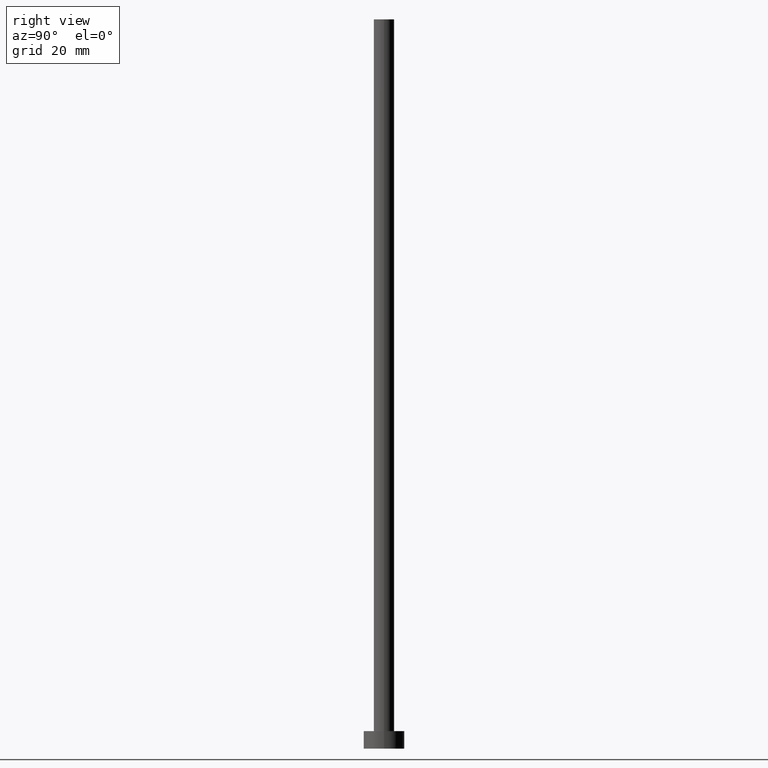
[diagram: clean part render]
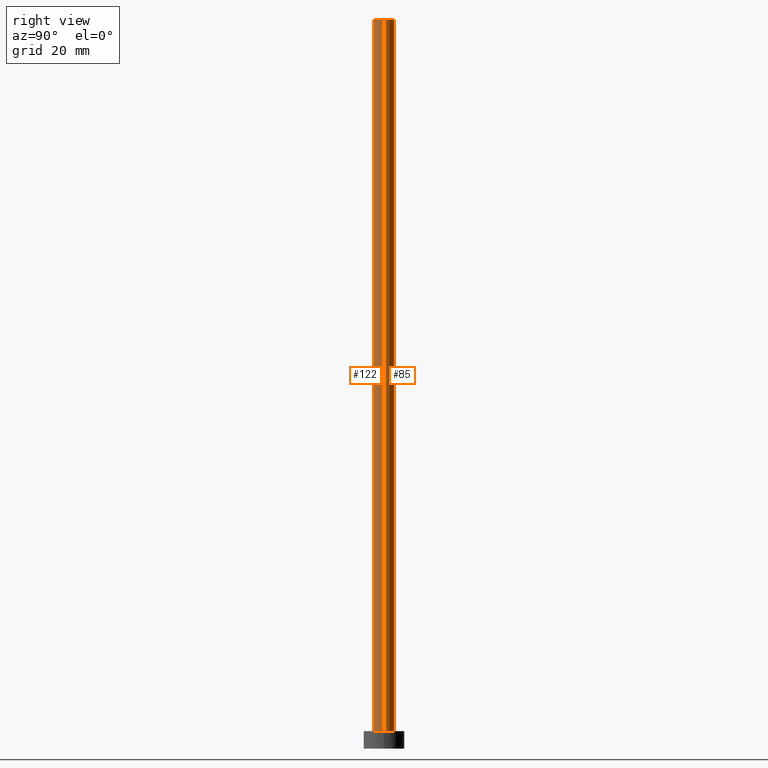
[diagram: same view with one multi-face feature highlighted, each face labeled with its STEP entity id]
A machine part, right view. The highlighted faces form ONE feature: a constant-radius fillet chain: 2 tangent blend faces with common blend radius 1.75 mm. The faces share edges in the B-rep.
Their STEP definitions:
[1] entity #85 (Cylinder):
#16 = VERTEX_POINT ( 'NONE', #32 ) ;
#17 = EDGE_CURVE ( 'NONE', #16, #148, #189, .T. ) ;
#20 = ORIENTED_EDGE ( 'NONE', *, *, #95, .F. ) ;
#23 = DIRECTION ( 'NONE',  ( -1.000000000000000000, 0.000000000000000000, 0.000000000000000000 ) ) ;
#32 = CARTESIAN_POINT ( 'NONE',  ( 1.750000000000000000, 2.143131898507867804E-16, 3.000000000000000000 ) ) ;
#38 = EDGE_CURVE ( 'NONE', #84, #16, #245, .T. ) ;
#41 = CARTESIAN_POINT ( 'NONE',  ( -1.750000000000000000, 0.000000000000000000, 125.0000000000000000 ) ) ;
#56 = AXIS2_PLACEMENT_3D ( 'NONE', #200, #114, #23 ) ;
#57 = DIRECTION ( 'NONE',  ( 1.000000000000000000, 0.000000000000000000, 0.000000000000000000 ) ) ;
#60 = ORIENTED_EDGE ( 'NONE', *, *, #110, .F. ) ;
#67 = CARTESIAN_POINT ( 'NONE',  ( 1.750000000000000000, 2.143131898507867804E-16, 125.0000000000000000 ) ) ;
#70 = DIRECTION ( 'NONE',  ( -0.000000000000000000, -0.000000000000000000, -1.000000000000000000 ) ) ;
#75 = DIRECTION ( 'NONE',  ( 0.000000000000000000, 0.000000000000000000, 1.000000000000000000 ) ) ;
#84 = VERTEX_POINT ( 'NONE', #67 ) ;
#85 = ADVANCED_FACE ( 'NONE', ( #144 ), #147, .T. ) ;
#89 = VECTOR ( 'NONE', #70, 1000.000000000000000 ) ;
#95 = EDGE_CURVE ( 'NONE', #221, #148, #201, .T. ) ;
#99 = VECTOR ( 'NONE', #154, 1000.000000000000000 ) ;
#110 = EDGE_CURVE ( 'NONE', #84, #221, #235, .T. ) ;
#114 = DIRECTION ( 'NONE',  ( -0.000000000000000000, -0.000000000000000000, -1.000000000000000000 ) ) ;
#116 = CARTESIAN_POINT ( 'NONE',  ( -1.750000000000000000, 0.000000000000000000, 3.000000000000000000 ) ) ;
#128 = AXIS2_PLACEMENT_3D ( 'NONE', #246, #75, #228 ) ;
#144 = FACE_OUTER_BOUND ( 'NONE', #206, .T. ) ;
#147 = CYLINDRICAL_SURFACE ( 'NONE', #56, 1.750000000000000000 ) ;
#148 = VERTEX_POINT ( 'NONE', #116 ) ;
#154 = DIRECTION ( 'NONE',  ( -0.000000000000000000, -0.000000000000000000, -1.000000000000000000 ) ) ;
#163 = ORIENTED_EDGE ( 'NONE', *, *, #38, .T. ) ;
#171 = CARTESIAN_POINT ( 'NONE',  ( 0.000000000000000000, 0.000000000000000000, 3.000000000000000000 ) ) ;
#189 = CIRCLE ( 'NONE', #204, 1.750000000000000000 ) ;
#190 = DIRECTION ( 'NONE',  ( 0.000000000000000000, 0.000000000000000000, 1.000000000000000000 ) ) ;
#191 = CARTESIAN_POINT ( 'NONE',  ( 1.750000000000000000, 2.143131898507867804E-16, 125.0000000000000000 ) ) ;
#200 = CARTESIAN_POINT ( 'NONE',  ( 0.000000000000000000, 0.000000000000000000, 125.0000000000000000 ) ) ;
#201 = LINE ( 'NONE', #242, #89 ) ;
#204 = AXIS2_PLACEMENT_3D ( 'NONE', #171, #190, #57 ) ;
#206 = EDGE_LOOP ( 'NONE', ( #60, #163, #215, #20 ) ) ;
#215 = ORIENTED_EDGE ( 'NONE', *, *, #17, .T. ) ;
#221 = VERTEX_POINT ( 'NONE', #41 ) ;
#228 = DIRECTION ( 'NONE',  ( 1.000000000000000000, 0.000000000000000000, 0.000000000000000000 ) ) ;
#235 = CIRCLE ( 'NONE', #128, 1.750000000000000000 ) ;
#242 = CARTESIAN_POINT ( 'NONE',  ( -1.750000000000000000, 0.000000000000000000, 125.0000000000000000 ) ) ;
#245 = LINE ( 'NONE', #191, #99 ) ;
#246 = CARTESIAN_POINT ( 'NONE',  ( 0.000000000000000000, 0.000000000000000000, 125.0000000000000000 ) ) ;
[2] entity #122 (Cylinder):
#16 = VERTEX_POINT ( 'NONE', #32 ) ;
#18 = EDGE_LOOP ( 'NONE', ( #106, #184, #219, #34 ) ) ;
#32 = CARTESIAN_POINT ( 'NONE',  ( 1.750000000000000000, 2.143131898507867804E-16, 3.000000000000000000 ) ) ;
#34 = ORIENTED_EDGE ( 'NONE', *, *, #229, .T. ) ;
#38 = EDGE_CURVE ( 'NONE', #84, #16, #245, .T. ) ;
#41 = CARTESIAN_POINT ( 'NONE',  ( -1.750000000000000000, 0.000000000000000000, 125.0000000000000000 ) ) ;
#51 = AXIS2_PLACEMENT_3D ( 'NONE', #69, #150, #82 ) ;
#53 = FACE_OUTER_BOUND ( 'NONE', #18, .T. ) ;
#67 = CARTESIAN_POINT ( 'NONE',  ( 1.750000000000000000, 2.143131898507867804E-16, 125.0000000000000000 ) ) ;
#69 = CARTESIAN_POINT ( 'NONE',  ( 0.000000000000000000, 0.000000000000000000, 3.000000000000000000 ) ) ;
#70 = DIRECTION ( 'NONE',  ( -0.000000000000000000, -0.000000000000000000, -1.000000000000000000 ) ) ;
#82 = DIRECTION ( 'NONE',  ( 1.000000000000000000, 0.000000000000000000, 0.000000000000000000 ) ) ;
#84 = VERTEX_POINT ( 'NONE', #67 ) ;
#89 = VECTOR ( 'NONE', #70, 1000.000000000000000 ) ;
#90 = EDGE_CURVE ( 'NONE', #221, #84, #241, .T. ) ;
#94 = CARTESIAN_POINT ( 'NONE',  ( 0.000000000000000000, 0.000000000000000000, 125.0000000000000000 ) ) ;
#95 = EDGE_CURVE ( 'NONE', #221, #148, #201, .T. ) ;
#99 = VECTOR ( 'NONE', #154, 1000.000000000000000 ) ;
#106 = ORIENTED_EDGE ( 'NONE', *, *, #38, .F. ) ;
#116 = CARTESIAN_POINT ( 'NONE',  ( -1.750000000000000000, 0.000000000000000000, 3.000000000000000000 ) ) ;
#122 = ADVANCED_FACE ( 'NONE', ( #53 ), #155, .T. ) ;
#132 = DIRECTION ( 'NONE',  ( 1.000000000000000000, 0.000000000000000000, 0.000000000000000000 ) ) ;
#137 = DIRECTION ( 'NONE',  ( -1.000000000000000000, 0.000000000000000000, 0.000000000000000000 ) ) ;
#148 = VERTEX_POINT ( 'NONE', #116 ) ;
#150 = DIRECTION ( 'NONE',  ( 0.000000000000000000, 0.000000000000000000, 1.000000000000000000 ) ) ;
#154 = DIRECTION ( 'NONE',  ( -0.000000000000000000, -0.000000000000000000, -1.000000000000000000 ) ) ;
#155 = CYLINDRICAL_SURFACE ( 'NONE', #225, 1.750000000000000000 ) ;
#184 = ORIENTED_EDGE ( 'NONE', *, *, #90, .F. ) ;
#191 = CARTESIAN_POINT ( 'NONE',  ( 1.750000000000000000, 2.143131898507867804E-16, 125.0000000000000000 ) ) ;
#201 = LINE ( 'NONE', #242, #89 ) ;
#209 = DIRECTION ( 'NONE',  ( -0.000000000000000000, -0.000000000000000000, -1.000000000000000000 ) ) ;
#219 = ORIENTED_EDGE ( 'NONE', *, *, #95, .T. ) ;
#220 = DIRECTION ( 'NONE',  ( 0.000000000000000000, 0.000000000000000000, 1.000000000000000000 ) ) ;
#221 = VERTEX_POINT ( 'NONE', #41 ) ;
#223 = CARTESIAN_POINT ( 'NONE',  ( 0.000000000000000000, 0.000000000000000000, 125.0000000000000000 ) ) ;
#225 = AXIS2_PLACEMENT_3D ( 'NONE', #94, #209, #137 ) ;
#229 = EDGE_CURVE ( 'NONE', #148, #16, #251, .T. ) ;
#238 = AXIS2_PLACEMENT_3D ( 'NONE', #223, #220, #132 ) ;
#241 = CIRCLE ( 'NONE', #238, 1.750000000000000000 ) ;
#242 = CARTESIAN_POINT ( 'NONE',  ( -1.750000000000000000, 0.000000000000000000, 125.0000000000000000 ) ) ;
#245 = LINE ( 'NONE', #191, #99 ) ;
#251 = CIRCLE ( 'NONE', #51, 1.750000000000000000 ) ;